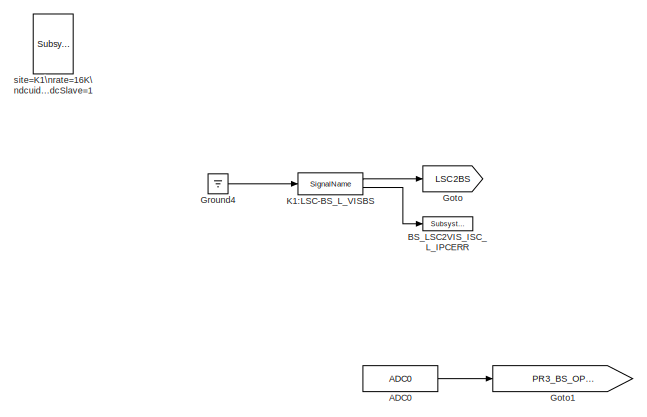
[diagram: root canvas - part 1/2, top left region]
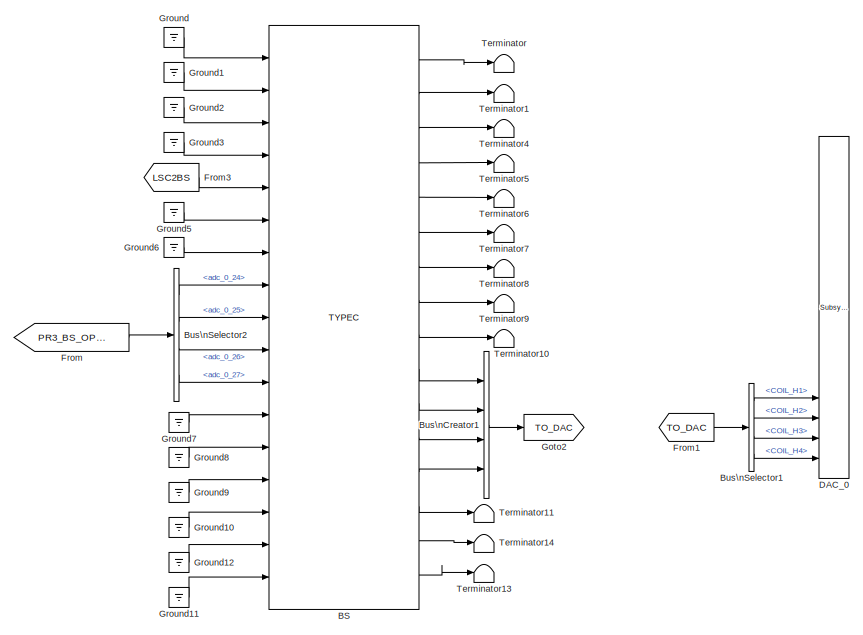
[diagram: root canvas - part 2/2, right side, full height]
MODEL k1visbs
KIND model
BLOCK [Reference] ADC0  REF=cdsAdcx0/ADC0
  AttributesFormatString = %<Description>\\n%<Tag>
  Description = type-GSC_16AI64SSA\ncard_num=0
  Ports = [0, 1]
  SID = 69
  SourceBlock = cdsAdcx0/ADC0
  SourceType = SubSystem
  Tag = cdsAdc
BLOCK [Reference] BS  REF=TYPEC_MASTER/TYPEC
  AttributesFormatString = %<Description>
  Description = TYPEC MASTER
  Ports = [17, 16]
  SID = 19
  SourceBlock = TYPEC_MASTER/TYPEC
  SourceType = SubSystem
BLOCK [Reference] BS_LSC2VIS_ISC_L_IPCERR  REF=cdsEpicsOut/Subsystem
  AttributesFormatString = %<Tag>
  Description = Purpose:                                          \nOutput a FE signal to an EPICS channel.           \n                                                  \nOperation:                                        \nTakes input value and passes it to EPICS record.  \n                                                  \nUsage:                                            \nName the part with the desired EPICS...<+14ch>
  Ports = [1, 1]
  SID = 44
  SourceBlock = cdsEpicsOut/Subsystem
  SourceType = SubSystem
  Tag = cdsEpicsOutput
BLOCK [BusCreator] Bus\nCreator1
  DisplayOption = bar
  Inputs = 'COIL_H1','COIL_H2','COIL_H3','COIL_H4'
  Ports = [4, 1]
  SID = 89
BLOCK [BusSelector] Bus\nSelector1
  AttributesFormatString = %<Description>
  Description = ADC Selector
  OutputSignals = COIL_H1,COIL_H2,COIL_H3,COIL_H4
  Ports = [1, 4]
  SID = 92
BLOCK [BusSelector] Bus\nSelector2
  AttributesFormatString = %<Description>
  Description = ADC Selector
  OutputSignals = adc_0_24,adc_0_25,adc_0_26,adc_0_27
  Ports = [1, 4]
  SID = 88
BLOCK [Reference] DAC_0  REF=dac/Subsystem  (lib defined in slx_40ef132df75b, slx_b7657ccccc5b, +4 more)
  AttributesFormatString = %<Description>
  Description = type=GSC_16AO16,\ncard_num=0
  Ports = [16]
  SID = 5
  SourceBlock = dac/Subsystem
  SourceType = SubSystem
BLOCK [From] From
  GotoTag = PR3_BS_OPLEV_QPD
  SID = 86
BLOCK [From] From1
  GotoTag = TO_DAC
  SID = 91
BLOCK [From] From3
  GotoTag = LSC2BS
  SID = 83
BLOCK [Goto] Goto
  GotoTag = LSC2BS
  SID = 82
BLOCK [Goto] Goto1
  GotoTag = PR3_BS_OPLEV_QPD
  SID = 84
BLOCK [Goto] Goto2
  GotoTag = TO_DAC
  SID = 90
BLOCK [Ground] Ground
  SID = 20
BLOCK [Ground] Ground1
  SID = 21
BLOCK [Ground] Ground10
  SID = 22
BLOCK [Ground] Ground11
  SID = 23
BLOCK [Ground] Ground12
  SID = 24
BLOCK [Ground] Ground2
  SID = 25
BLOCK [Ground] Ground3
  SID = 26
BLOCK [Ground] Ground4
  SID = 45
BLOCK [Ground] Ground5
  SID = 27
BLOCK [Ground] Ground6
  SID = 28
BLOCK [Ground] Ground7
  SID = 29
BLOCK [Ground] Ground8
  SID = 30
BLOCK [Ground] Ground9
  SID = 31
BLOCK [Reference] K1:LSC-BS_L_VISBS  REF=cdsIPCx/SignalName
  AttributesFormatString = %<Tag>
  Description = Inter-Process Communication via PCI Express network.
  Ports = [1, 2]
  SID = 68
  SourceBlock = cdsIPCx/SignalName
  SourceType = SubSystem
  Tag = cdsIPCx_PCIE
BLOCK [Terminator] Terminator
  SID = 32
BLOCK [Terminator] Terminator1
  SID = 33
BLOCK [Terminator] Terminator10
  SID = 34
BLOCK [Terminator] Terminator11
  SID = 35
BLOCK [Terminator] Terminator13
  SID = 36
BLOCK [Terminator] Terminator14
  SID = 37
BLOCK [Terminator] Terminator4
  SID = 38
BLOCK [Terminator] Terminator5
  SID = 39
BLOCK [Terminator] Terminator6
  SID = 40
BLOCK [Terminator] Terminator7
  SID = 41
BLOCK [Terminator] Terminator8
  SID = 42
BLOCK [Terminator] Terminator9
  SID = 43
BLOCK [Reference] site=K1\nrate=16K\ndcuid=96\nhost=k1pr2\nspecific_cpu=4\nadcSlave=1  REF=cdsParameters/Subsystem
  AttributesFormatString = %<Tag>
  Description = Purpose:                                                                                                                                                                                                                                \nProvide system parameters to the FE code generator to properly configure the generated EPICS names, rep rate of the FE controller, and the Data Acquisition node ID fo...<+2934ch>
  Ports = [1, 1]
  SID = 1
  SourceBlock = cdsParameters/Subsystem
  SourceType = SubSystem
  Tag = cdsParameters
LINE ADC0:1 -> Goto1:1
LINE BS:1 -> Terminator:1
LINE BS:10 -> Bus\nCreator1:1
LINE BS:11 -> Bus\nCreator1:2
LINE BS:12 -> Bus\nCreator1:3
LINE BS:13 -> Bus\nCreator1:4
LINE BS:14 -> Terminator11:1
LINE BS:15 -> Terminator14:1
LINE BS:16 -> Terminator13:1
LINE BS:2 -> Terminator1:1
LINE BS:3 -> Terminator4:1
LINE BS:4 -> Terminator5:1
LINE BS:5 -> Terminator6:1
LINE BS:6 -> Terminator7:1
LINE BS:7 -> Terminator8:1
LINE BS:8 -> Terminator9:1
LINE BS:9 -> Terminator10:1
LINE Bus\nCreator1:1 -> Goto2:1
LINE Bus\nSelector1:1 -> DAC_0:13
LINE Bus\nSelector1:2 -> DAC_0:14
LINE Bus\nSelector1:3 -> DAC_0:15
LINE Bus\nSelector1:4 -> DAC_0:16
LINE Bus\nSelector2:1 -> BS:8
LINE Bus\nSelector2:2 -> BS:9
LINE Bus\nSelector2:3 -> BS:10
LINE Bus\nSelector2:4 -> BS:11
LINE From1:1 -> Bus\nSelector1:1
LINE From3:1 -> BS:5
LINE From:1 -> Bus\nSelector2:1
LINE Ground10:1 -> BS:15
LINE Ground11:1 -> BS:17
LINE Ground12:1 -> BS:16
LINE Ground1:1 -> BS:2
LINE Ground2:1 -> BS:3
LINE Ground3:1 -> BS:4
LINE Ground4:1 -> K1:LSC-BS_L_VISBS:1
LINE Ground5:1 -> BS:6
LINE Ground6:1 -> BS:7
LINE Ground7:1 -> BS:12
LINE Ground8:1 -> BS:13
LINE Ground9:1 -> BS:14
LINE Ground:1 -> BS:1
LINE K1:LSC-BS_L_VISBS:1 -> Goto:1
LINE K1:LSC-BS_L_VISBS:2 -> BS_LSC2VIS_ISC_L_IPCERR:1
